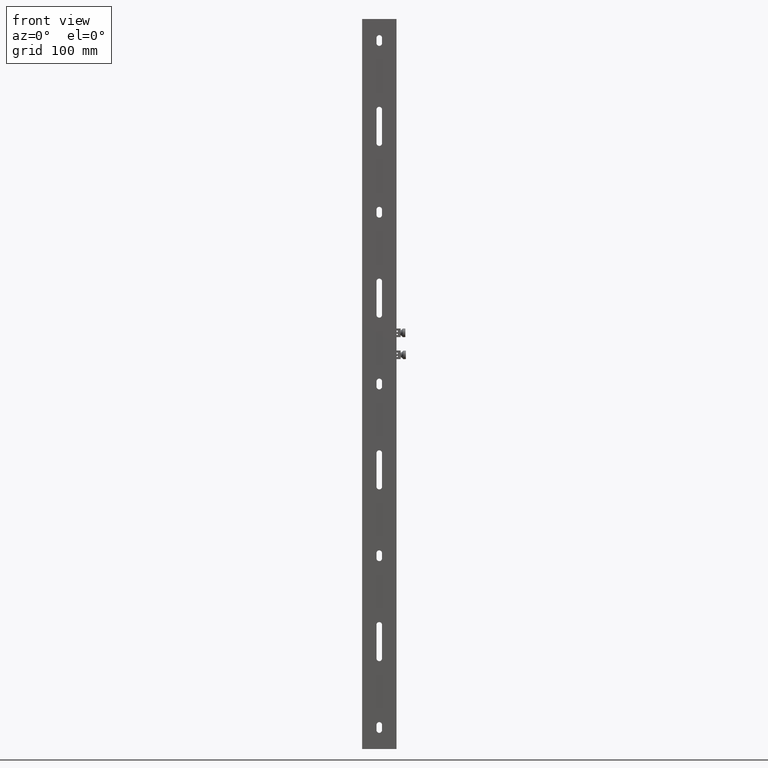
[diagram: clean part render]
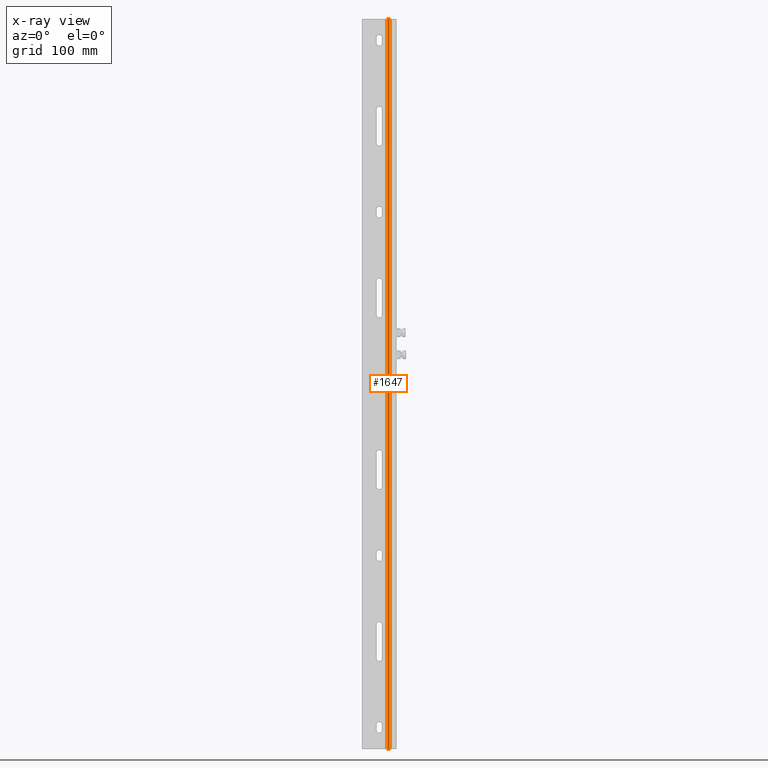
[diagram: x-ray — body ghosted, one internal face saturated and labeled with its STEP entity id]
A machine part, front view, then the same camera in x-ray: the body is ghosted and one INTERNAL B-rep face — a face not visible from any outside direction — is saturated and labeled: STEP entity #1647.
In plain terms, the highlighted planar face has unit normal (-0, 1, 0).
Its self-contained STEP definition (entity closure, byte-faithful):
#257 = CARTESIAN_POINT ( 'NONE',  ( -1.123668541772420414E-15, 0.000000000000000000, -8.000000000000000000 ) ) ;
#780 = EDGE_LOOP ( 'NONE', ( #5612, #3239, #5092, #2859 ) ) ;
#804 = PLANE ( 'NONE',  #5894 ) ;
#1155 = CARTESIAN_POINT ( 'NONE',  ( 11.99999999999999822, 425.0000000000000000, -8.000000000000001776 ) ) ;
#1263 = EDGE_CURVE ( 'NONE', #3014, #3140, #4797, .T. ) ;
#1305 = DIRECTION ( 'NONE',  ( 1.000000000000000000, -0.000000000000000000, -1.445602896647339163E-16 ) ) ;
#1647 = ADVANCED_FACE ( 'NONE', ( #2249 ), #804, .T. ) ;
#1937 = VECTOR ( 'NONE', #5043, 1000.000000000000000 ) ;
#1976 = VECTOR ( 'NONE', #1305, 1000.000000000000000 ) ;
#2045 = CARTESIAN_POINT ( 'NONE',  ( 11.99999999999999822, 425.0000000000000000, -8.000000000000001776 ) ) ;
#2209 = DIRECTION ( 'NONE',  ( -1.000000000000000000, 0.000000000000000000, 1.445602896647339163E-16 ) ) ;
#2249 = FACE_OUTER_BOUND ( 'NONE', #780, .T. ) ;
#2616 = LINE ( 'NONE', #2045, #1976 ) ;
#2859 = ORIENTED_EDGE ( 'NONE', *, *, #2903, .T. ) ;
#2903 = EDGE_CURVE ( 'NONE', #3140, #7388, #5186, .T. ) ;
#3009 = VERTEX_POINT ( 'NONE', #6514 ) ;
#3014 = VERTEX_POINT ( 'NONE', #1155 ) ;
#3133 = CARTESIAN_POINT ( 'NONE',  ( 9.604686356149276349, 425.0000000000000000, -8.000000000000001776 ) ) ;
#3140 = VERTEX_POINT ( 'NONE', #6248 ) ;
#3239 = ORIENTED_EDGE ( 'NONE', *, *, #8513, .T. ) ;
#3738 = EDGE_CURVE ( 'NONE', #7388, #3009, #6401, .T. ) ;
#3865 = VECTOR ( 'NONE', #4587, 1000.000000000000000 ) ;
#4587 = DIRECTION ( 'NONE',  ( -1.000000000000000000, 0.000000000000000000, 1.445602896647339163E-16 ) ) ;
#4797 = LINE ( 'NONE', #6813, #1937 ) ;
#4823 = DIRECTION ( 'NONE',  ( -1.445602896647339163E-16, 0.000000000000000000, -1.000000000000000000 ) ) ;
#5043 = DIRECTION ( 'NONE',  ( 0.000000000000000000, -1.000000000000000000, 0.000000000000000000 ) ) ;
#5092 = ORIENTED_EDGE ( 'NONE', *, *, #1263, .T. ) ;
#5186 = LINE ( 'NONE', #8607, #3865 ) ;
#5374 = CARTESIAN_POINT ( 'NONE',  ( 9.604686356149276349, -425.0000000000000000, -8.000000000000001776 ) ) ;
#5612 = ORIENTED_EDGE ( 'NONE', *, *, #3738, .T. ) ;
#5894 = AXIS2_PLACEMENT_3D ( 'NONE', #257, #4823, #2209 ) ;
#6248 = CARTESIAN_POINT ( 'NONE',  ( 11.99999999999999822, -425.0000000000000000, -8.000000000000001776 ) ) ;
#6401 = LINE ( 'NONE', #3133, #7071 ) ;
#6514 = CARTESIAN_POINT ( 'NONE',  ( 9.604686356149276349, 425.0000000000000000, -8.000000000000001776 ) ) ;
#6813 = CARTESIAN_POINT ( 'NONE',  ( 11.99999999999999822, 425.0000000000000000, -8.000000000000001776 ) ) ;
#7071 = VECTOR ( 'NONE', #7134, 1000.000000000000000 ) ;
#7134 = DIRECTION ( 'NONE',  ( 0.000000000000000000, 1.000000000000000000, 0.000000000000000000 ) ) ;
#7388 = VERTEX_POINT ( 'NONE', #5374 ) ;
#8513 = EDGE_CURVE ( 'NONE', #3009, #3014, #2616, .T. ) ;
#8607 = CARTESIAN_POINT ( 'NONE',  ( 11.99999999999999822, -425.0000000000000000, -8.000000000000001776 ) ) ;